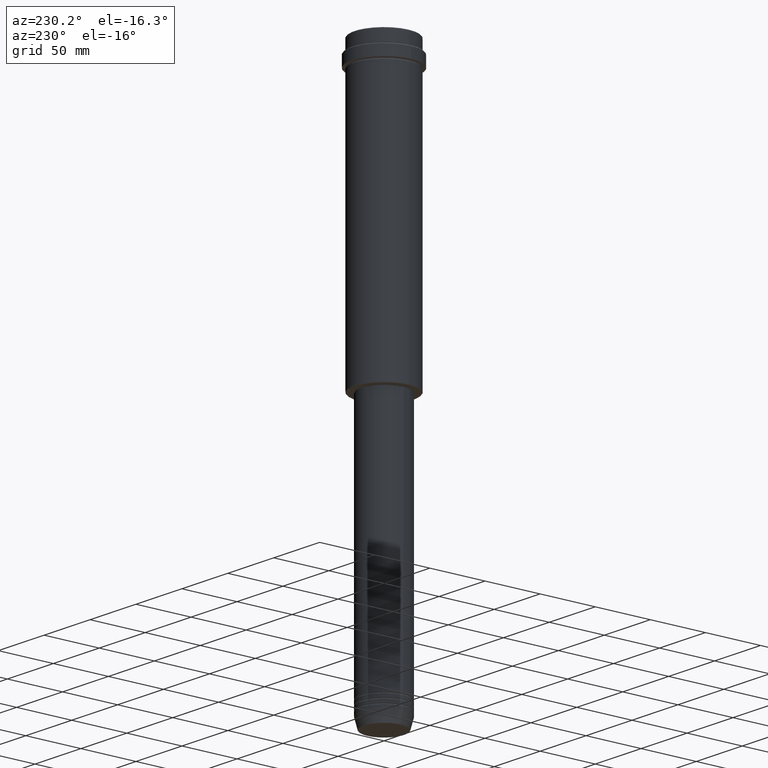
[diagram: clean part render]
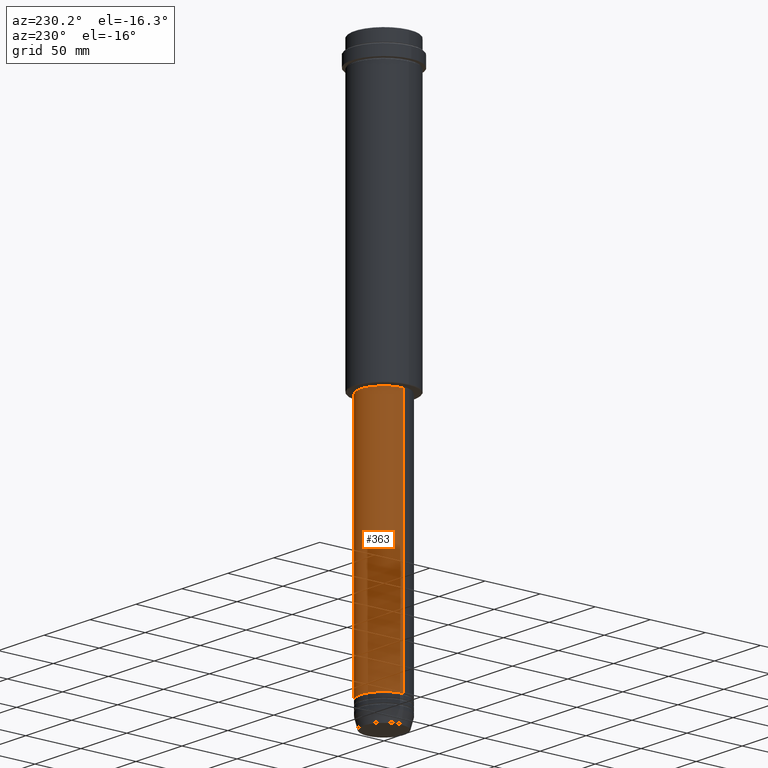
[diagram: same view with one face highlighted and labeled with its STEP entity id]
A machine part, auxiliary view. The second image highlights one B-rep face of the part: STEP entity #363.
In plain terms, the highlighted cylindrical surface (edge-blend (fillet) strip) has radius 21 mm, axis along (-0, -0, 1).
Its self-contained STEP definition (entity closure, byte-faithful):
#54 = CIRCLE ( 'NONE', #83, 21.00000000000000000 ) ;
#83 = AXIS2_PLACEMENT_3D ( 'NONE', #711, #255, #156 ) ;
#88 = VERTEX_POINT ( 'NONE', #1323 ) ;
#126 = LINE ( 'NONE', #1170, #1040 ) ;
#156 = DIRECTION ( 'NONE',  ( 1.000000000000000000, 0.000000000000000000, 0.000000000000000000 ) ) ;
#255 = DIRECTION ( 'NONE',  ( -0.000000000000000000, -0.000000000000000000, 1.000000000000000000 ) ) ;
#301 = DIRECTION ( 'NONE',  ( -0.000000000000000000, -0.000000000000000000, 1.000000000000000000 ) ) ;
#363 = ADVANCED_FACE ( 'NONE', ( #1347 ), #402, .T. ) ;
#367 = LINE ( 'NONE', #798, #814 ) ;
#383 = DIRECTION ( 'NONE',  ( 1.000000000000000000, 0.000000000000000000, 0.000000000000000000 ) ) ;
#402 = CYLINDRICAL_SURFACE ( 'NONE', #642, 21.00000000000000000 ) ;
#406 = ORIENTED_EDGE ( 'NONE', *, *, #490, .F. ) ;
#432 = CARTESIAN_POINT ( 'NONE',  ( -21.00000000000000000, 2.571758278209441661E-15, -259.0000000000000000 ) ) ;
#490 = EDGE_CURVE ( 'NONE', #1207, #802, #54, .T. ) ;
#557 = EDGE_LOOP ( 'NONE', ( #1081, #1167, #406, #1215 ) ) ;
#642 = AXIS2_PLACEMENT_3D ( 'NONE', #837, #301, #383 ) ;
#680 = DIRECTION ( 'NONE',  ( 1.000000000000000000, 0.000000000000000000, 0.000000000000000000 ) ) ;
#709 = DIRECTION ( 'NONE',  ( -0.000000000000000000, -0.000000000000000000, 1.000000000000000000 ) ) ;
#711 = CARTESIAN_POINT ( 'NONE',  ( 0.000000000000000000, 0.000000000000000000, -259.0000000000000000 ) ) ;
#722 = CARTESIAN_POINT ( 'NONE',  ( 21.00000000000000000, 0.000000000000000000, -259.0000000000000000 ) ) ;
#798 = CARTESIAN_POINT ( 'NONE',  ( 21.00000000000000000, 0.000000000000000000, 0.000000000000000000 ) ) ;
#802 = VERTEX_POINT ( 'NONE', #432 ) ;
#814 = VECTOR ( 'NONE', #709, 1000.000000000000000 ) ;
#815 = DIRECTION ( 'NONE',  ( -0.000000000000000000, -0.000000000000000000, 1.000000000000000000 ) ) ;
#837 = CARTESIAN_POINT ( 'NONE',  ( 0.000000000000000000, 0.000000000000000000, 0.000000000000000000 ) ) ;
#1026 = CARTESIAN_POINT ( 'NONE',  ( -21.00000000000000000, 2.571758278209441661E-15, -480.9999999999998863 ) ) ;
#1040 = VECTOR ( 'NONE', #1041, 1000.000000000000000 ) ;
#1041 = DIRECTION ( 'NONE',  ( -0.000000000000000000, -0.000000000000000000, 1.000000000000000000 ) ) ;
#1081 = ORIENTED_EDGE ( 'NONE', *, *, #1104, .T. ) ;
#1104 = EDGE_CURVE ( 'NONE', #88, #1120, #1355, .T. ) ;
#1119 = EDGE_CURVE ( 'NONE', #88, #1207, #367, .T. ) ;
#1120 = VERTEX_POINT ( 'NONE', #1026 ) ;
#1134 = EDGE_CURVE ( 'NONE', #1120, #802, #126, .T. ) ;
#1167 = ORIENTED_EDGE ( 'NONE', *, *, #1134, .T. ) ;
#1170 = CARTESIAN_POINT ( 'NONE',  ( -21.00000000000000000, 2.571758278209441661E-15, 0.000000000000000000 ) ) ;
#1207 = VERTEX_POINT ( 'NONE', #722 ) ;
#1215 = ORIENTED_EDGE ( 'NONE', *, *, #1119, .F. ) ;
#1323 = CARTESIAN_POINT ( 'NONE',  ( 21.00000000000000000, 0.000000000000000000, -480.9999999999998863 ) ) ;
#1333 = AXIS2_PLACEMENT_3D ( 'NONE', #1343, #815, #680 ) ;
#1343 = CARTESIAN_POINT ( 'NONE',  ( 0.000000000000000000, 0.000000000000000000, -480.9999999999998863 ) ) ;
#1347 = FACE_OUTER_BOUND ( 'NONE', #557, .T. ) ;
#1355 = CIRCLE ( 'NONE', #1333, 21.00000000000000000 ) ;